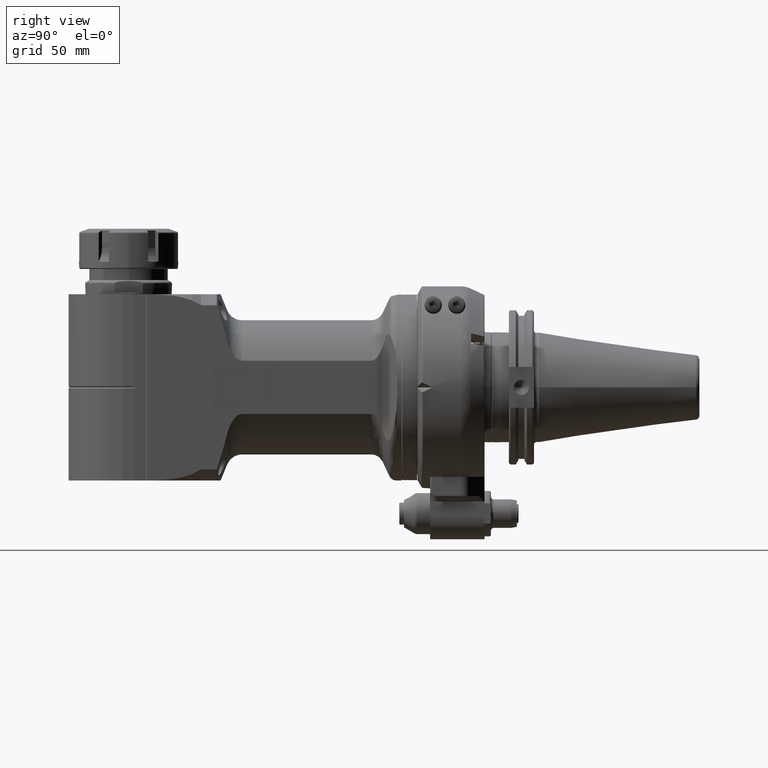
[diagram: clean part render]
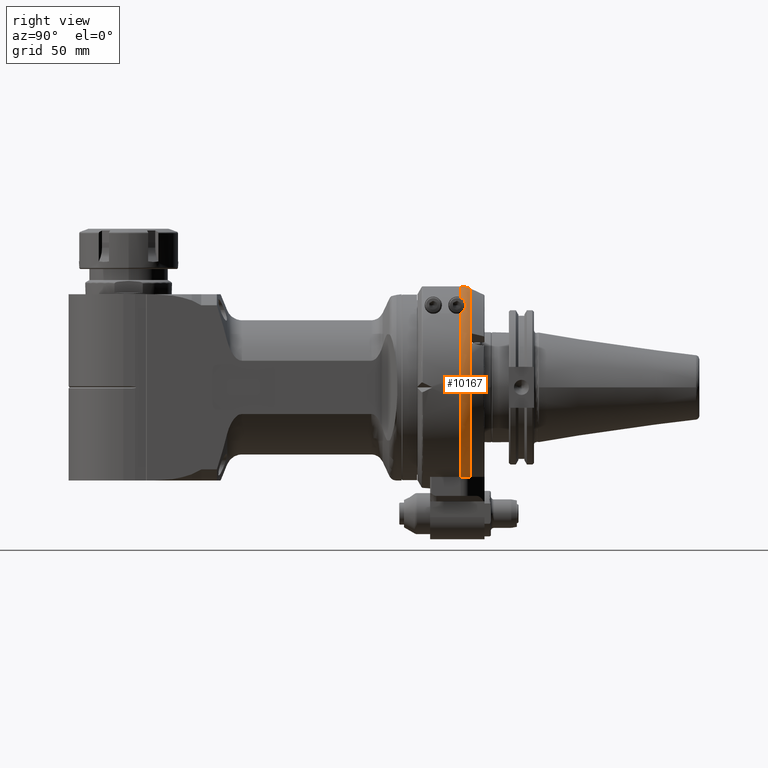
[diagram: same view with one face highlighted and labeled with its STEP entity id]
A machine part, right view. The second image highlights one B-rep face of the part: STEP entity #10167.
In plain terms, the highlighted toroidal blend (fillet) surface has major radius 50 mm and minor (blend) radius 14 mm.
Its self-contained STEP definition (entity closure, byte-faithful):
#254=B_SPLINE_CURVE_WITH_KNOTS('',3,(#15163,#15164,#15165,#15166,#15167,
#15168,#15169,#15170),.UNSPECIFIED.,.F.,.F.,(4,2,2,4),(3.74052063173177E-10,
0.259141742963151,0.51828348555225,0.578261082118),.UNSPECIFIED.);
#255=B_SPLINE_CURVE_WITH_KNOTS('',3,(#15171,#15172,#15173,#15174,#15175,
#15176,#15177,#15178,#15179,#15180,#15181,#15182,#15183,#15184,#15185,#15186,
#15187,#15188,#15189,#15190),.UNSPECIFIED.,.F.,.F.,(4,2,2,2,2,2,2,2,2,4),
(-5.59126527297257,-5.41145791585134,-5.01941152468785,-4.80611587961615,
-4.65072475116339,-4.50013807334029,-4.30809731119227,-4.00546240609342,
-3.72851748221668,-3.6652591924035),.UNSPECIFIED.);
#256=B_SPLINE_CURVE_WITH_KNOTS('',3,(#15191,#15192,#15193,#15194,#15195,
#15196,#15197,#15198,#15199,#15200,#15201,#15202),.UNSPECIFIED.,.F.,.F.,
(4,2,2,2,2,4),(2.63702911948999,2.66108248925062,2.83501521198956,3.0089479347285,
3.14488622340493,3.28082451208136),.UNSPECIFIED.);
#562=TOROIDAL_SURFACE('',#10847,50.,14.);
#704=CIRCLE('',#10839,64.);
#709=CIRCLE('',#10846,64.);
#710=CIRCLE('',#10848,62.68830901851);
#1234=FACE_OUTER_BOUND('',#1856,.T.);
#1856=EDGE_LOOP('',(#6762,#6763,#6764,#6765,#6766,#6767));
#4112=VERTEX_POINT('',#15101);
#4113=VERTEX_POINT('',#15102);
#4123=VERTEX_POINT('',#15122);
#4124=VERTEX_POINT('',#15124);
#4126=VERTEX_POINT('',#15160);
#4127=VERTEX_POINT('',#15161);
#5163=EDGE_CURVE('',#4112,#4113,#704,.T.);
#5174=EDGE_CURVE('',#4124,#4123,#709,.T.);
#5177=EDGE_CURVE('',#4126,#4127,#710,.T.);
#5178=EDGE_CURVE('',#4112,#4127,#254,.T.);
#5179=EDGE_CURVE('',#4113,#4124,#255,.T.);
#5180=EDGE_CURVE('',#4126,#4123,#256,.T.);
#6762=ORIENTED_EDGE('',*,*,#5177,.T.);
#6763=ORIENTED_EDGE('',*,*,#5178,.F.);
#6764=ORIENTED_EDGE('',*,*,#5163,.T.);
#6765=ORIENTED_EDGE('',*,*,#5179,.T.);
#6766=ORIENTED_EDGE('',*,*,#5174,.T.);
#6767=ORIENTED_EDGE('',*,*,#5180,.F.);
#10167=ADVANCED_FACE('',(#1234),#562,.T.);
#10839=AXIS2_PLACEMENT_3D('',#15103,#12033,#12034);
#10846=AXIS2_PLACEMENT_3D('',#15125,#12051,#12052);
#10847=AXIS2_PLACEMENT_3D('',#15159,#12053,#12054);
#10848=AXIS2_PLACEMENT_3D('',#15162,#12055,#12056);
#12033=DIRECTION('center_axis',(0.,1.,0.));
#12034=DIRECTION('ref_axis',(0.0234374975961501,0.,0.999725304124303));
#12051=DIRECTION('center_axis',(0.,1.,0.));
#12052=DIRECTION('ref_axis',(0.676128638662391,0.,0.73678359372379));
#12053=DIRECTION('center_axis',(0.,-1.,0.));
#12054=DIRECTION('ref_axis',(0.,0.,1.));
#12055=DIRECTION('center_axis',(0.,-1.,0.));
#12056=DIRECTION('ref_axis',(0.424831454853905,0.,-0.905272464491611));
#15101=CARTESIAN_POINT('',(1.49999983907449,27.6014864331705,63.9824194641222));
#15102=CARTESIAN_POINT('',(29.40321820789,27.60148642943,56.84585085139));
#15103=CARTESIAN_POINT('Origin',(0.,27.60148642943,0.));
#15122=CARTESIAN_POINT('',(29.58779309107,27.60148642943,-56.75));
#15124=CARTESIAN_POINT('',(43.27223287439,27.60148642943,47.15414999832));
#15125=CARTESIAN_POINT('Origin',(0.,27.60148642943,0.));
#15159=CARTESIAN_POINT('Origin',(0.,27.60148642943,0.));
#15160=CARTESIAN_POINT('',(26.63196552267,33.5181420938,-56.75));
#15161=CARTESIAN_POINT('',(1.49999987294151,33.5181468911745,62.6703582843571));
#15162=CARTESIAN_POINT('Origin',(0.,33.5181420938,0.));
#15163=CARTESIAN_POINT('Ctrl Pts',(1.499999846154,27.6014864331705,63.9824194639554));
#15164=CARTESIAN_POINT('Ctrl Pts',(1.499999846154,28.4652922423596,63.9824194637245));
#15165=CARTESIAN_POINT('Ctrl Pts',(1.499999846154,29.4086775980864,63.8971792793686));
#15166=CARTESIAN_POINT('Ctrl Pts',(1.499999846154,31.2562402607336,63.5296152390965));
#15167=CARTESIAN_POINT('Ctrl Pts',(1.499999846154,32.1604176457997,63.2472917950132));
#15168=CARTESIAN_POINT('Ctrl Pts',(1.499999846154,33.1431551244097,62.8401665469281));
#15169=CARTESIAN_POINT('Ctrl Pts',(1.499999846154,33.3301620801954,62.7580422337346));
#15170=CARTESIAN_POINT('Ctrl Pts',(1.499999846154,33.5181468914747,62.6703582850007));
#15171=CARTESIAN_POINT('Ctrl Pts',(29.4032182078978,27.60148642943,56.8458508513924));
#15172=CARTESIAN_POINT('Ctrl Pts',(29.8076874677397,27.9911860580734,56.6366412480986));
#15173=CARTESIAN_POINT('Ctrl Pts',(30.2382319509171,28.3375737728232,56.3902665536014));
#15174=CARTESIAN_POINT('Ctrl Pts',(31.6473054576882,29.3024308195095,55.5380751519606));
#15175=CARTESIAN_POINT('Ctrl Pts',(32.6873701866952,29.770414054218,54.8448245002573));
#15176=CARTESIAN_POINT('Ctrl Pts',(34.2996626593764,30.2337257609117,53.7423188278132));
#15177=CARTESIAN_POINT('Ctrl Pts',(34.8731083441791,30.3485415128302,53.3442767276966));
#15178=CARTESIAN_POINT('Ctrl Pts',(35.8587218657459,30.4688522160407,52.6547392186721));
#15179=CARTESIAN_POINT('Ctrl Pts',(36.2737942403934,30.4957284249088,52.3626368646229));
#15180=CARTESIAN_POINT('Ctrl Pts',(37.0836366470158,30.5032132299706,51.7901591659054));
#15181=CARTESIAN_POINT('Ctrl Pts',(37.4804498332678,30.4852402280359,51.5084123929758));
#15182=CARTESIAN_POINT('Ctrl Pts',(38.3711963323707,30.3953186018279,50.8731172064878));
#15183=CARTESIAN_POINT('Ctrl Pts',(38.8670412330607,30.3093229629784,50.5174312980129));
#15184=CARTESIAN_POINT('Ctrl Pts',(40.1095346246002,29.9919205791363,49.6186626233868));
#15185=CARTESIAN_POINT('Ctrl Pts',(40.8651202961842,29.6976898954991,49.0650289431985));
#15186=CARTESIAN_POINT('Ctrl Pts',(42.1590532348828,28.908409477643,48.0838292404525));
#15187=CARTESIAN_POINT('Ctrl Pts',(42.6650846264114,28.4596195395251,47.6833955490184));
#15188=CARTESIAN_POINT('Ctrl Pts',(43.1200976986053,27.8452711958716,47.2912004596562));
#15189=CARTESIAN_POINT('Ctrl Pts',(43.1994559698799,27.7258895688629,47.2209356186779));
#15190=CARTESIAN_POINT('Ctrl Pts',(43.2722328743895,27.6014864294266,47.1541499983258));
#15191=CARTESIAN_POINT('Ctrl Pts',(26.6319655226691,33.518142093799,-56.75));
#15192=CARTESIAN_POINT('Ctrl Pts',(26.6920979999331,33.4633581601593,-56.75));
#15193=CARTESIAN_POINT('Ctrl Pts',(26.7512792830639,33.408361868882,-56.75));
#15194=CARTESIAN_POINT('Ctrl Pts',(27.230246066667,32.9543468588305,-56.75));
#15195=CARTESIAN_POINT('Ctrl Pts',(27.6609227543736,32.4852761233749,-56.75));
#15196=CARTESIAN_POINT('Ctrl Pts',(28.4148674900718,31.470489957476,-56.75));
#15197=CARTESIAN_POINT('Ctrl Pts',(28.736956370035,30.9238989846726,-56.75));
#15198=CARTESIAN_POINT('Ctrl Pts',(29.159081374818,29.9811901988036,-56.75));
#15199=CARTESIAN_POINT('Ctrl Pts',(29.3221098734077,29.5115649080788,-56.75));
#15200=CARTESIAN_POINT('Ctrl Pts',(29.5367181648402,28.5483330453369,-56.75));
#15201=CARTESIAN_POINT('Ctrl Pts',(29.5877930910705,28.0546140583514,-56.75));
#15202=CARTESIAN_POINT('Ctrl Pts',(29.5877930910705,27.60148642943,-56.75));